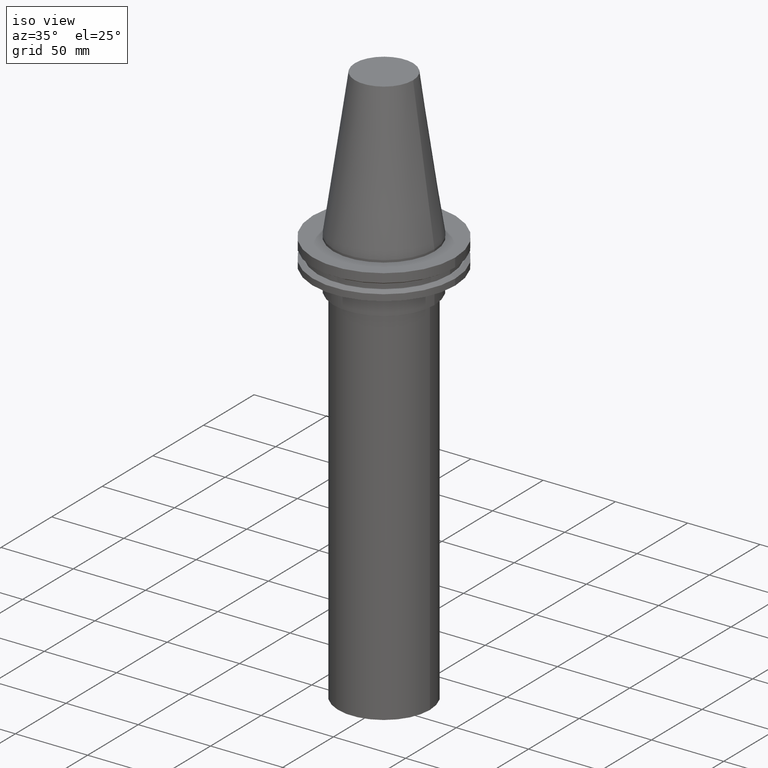
[diagram: clean part render]
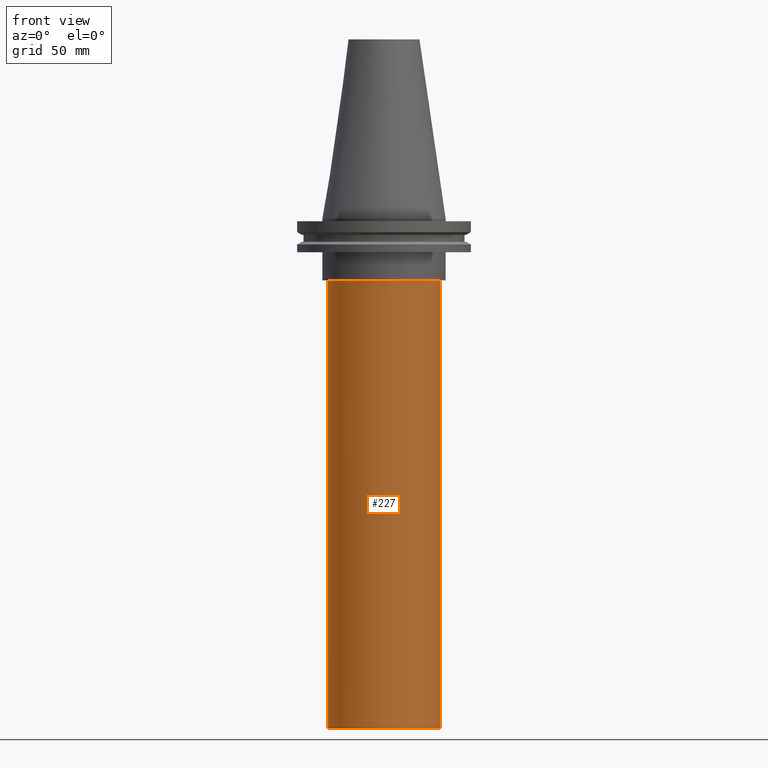
[diagram: tour spotlight — one face highlighted and labeled with its STEP entity id]
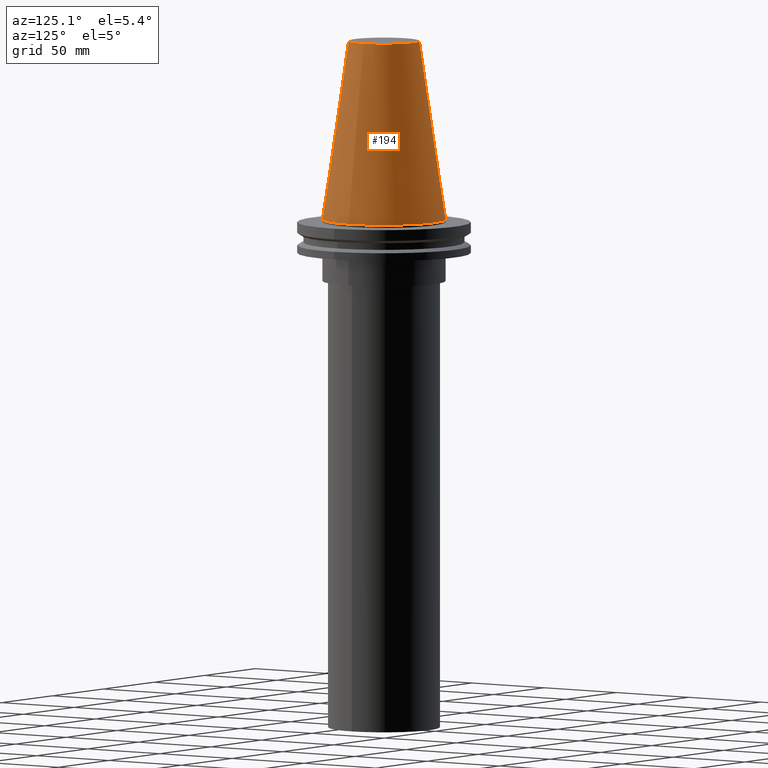
[diagram: tour spotlight — one face highlighted and labeled with its STEP entity id]
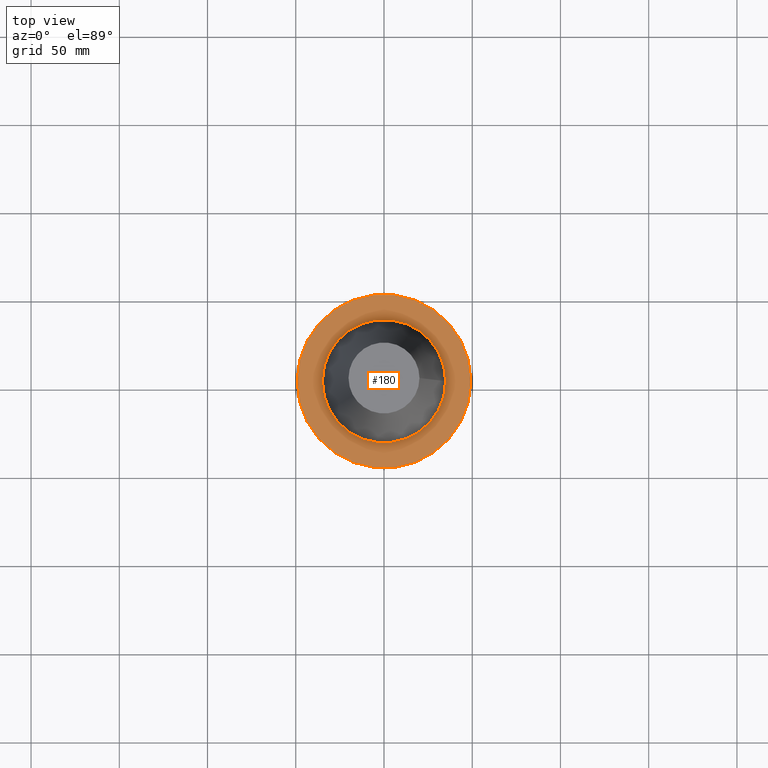
[diagram: tour spotlight — one face highlighted and labeled with its STEP entity id]
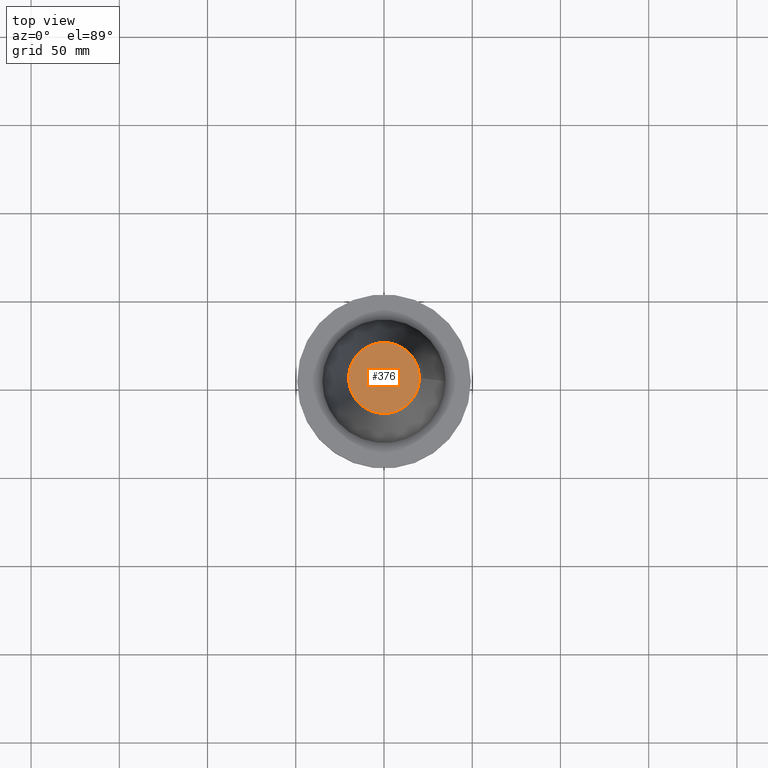
[diagram: tour spotlight — one face highlighted and labeled with its STEP entity id]
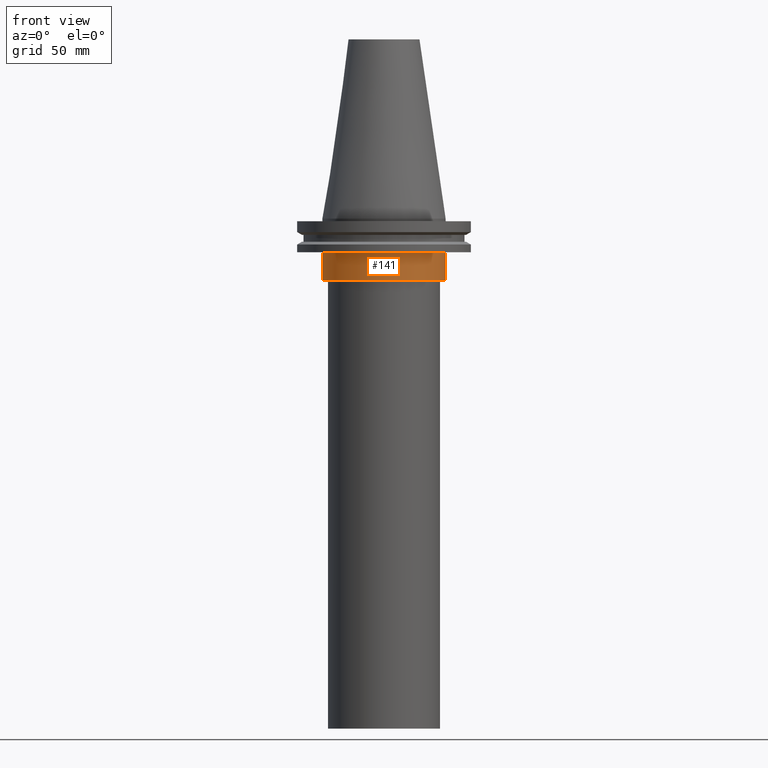
[diagram: tour spotlight — one face highlighted and labeled with its STEP entity id]
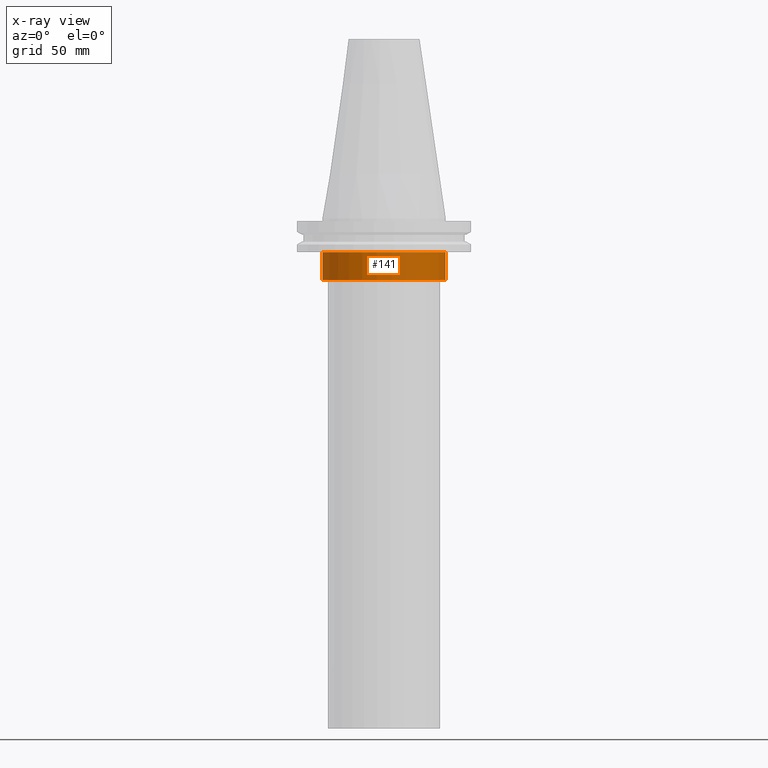
[diagram: x-ray of the same camera — body ghosted, this tour face saturated]
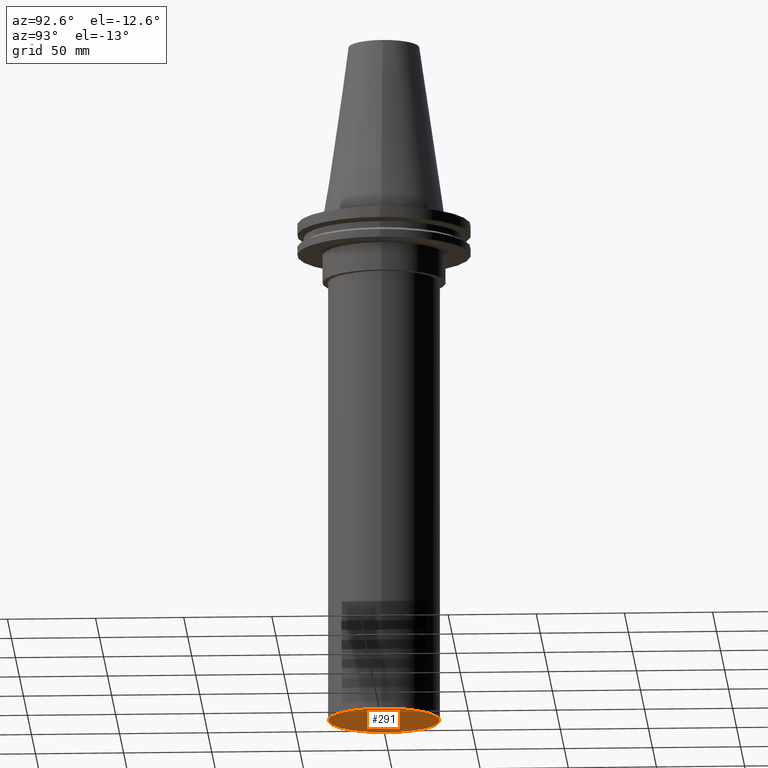
[diagram: tour spotlight — one face highlighted and labeled with its STEP entity id]
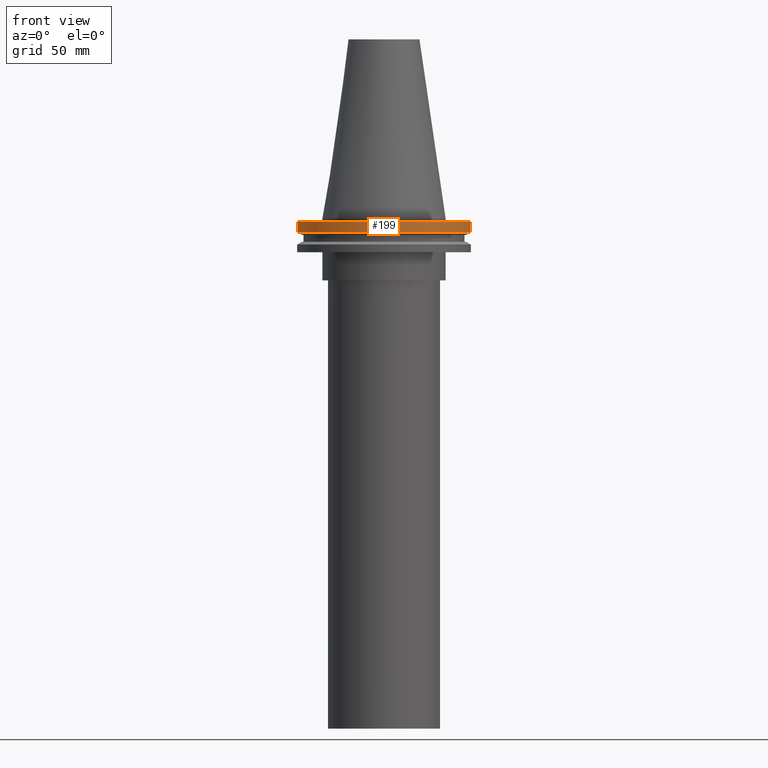
[diagram: tour spotlight — one face highlighted and labeled with its STEP entity id]
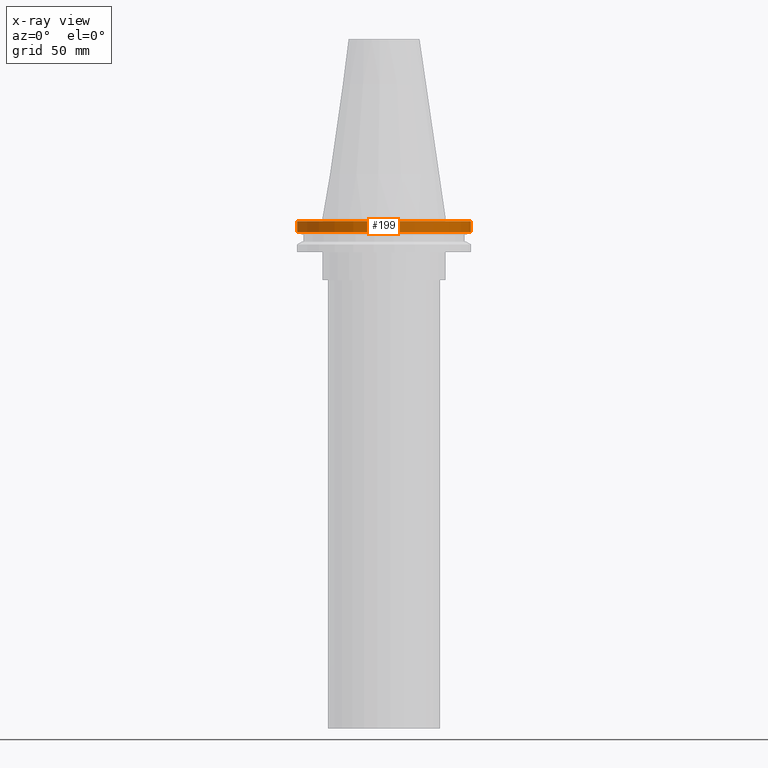
[diagram: x-ray of the same camera — body ghosted, this tour face saturated]
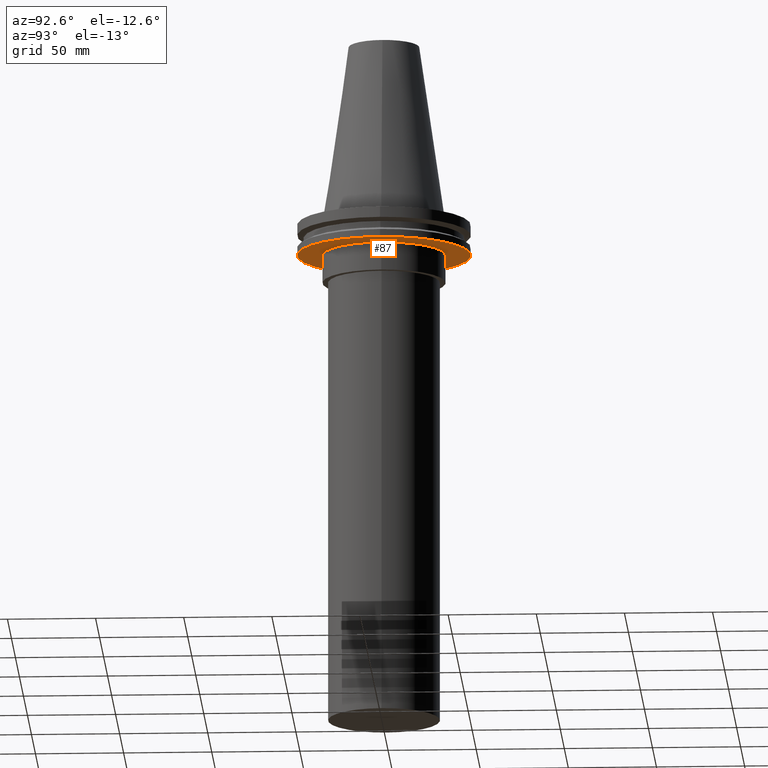
[diagram: tour spotlight — one face highlighted and labeled with its STEP entity id]
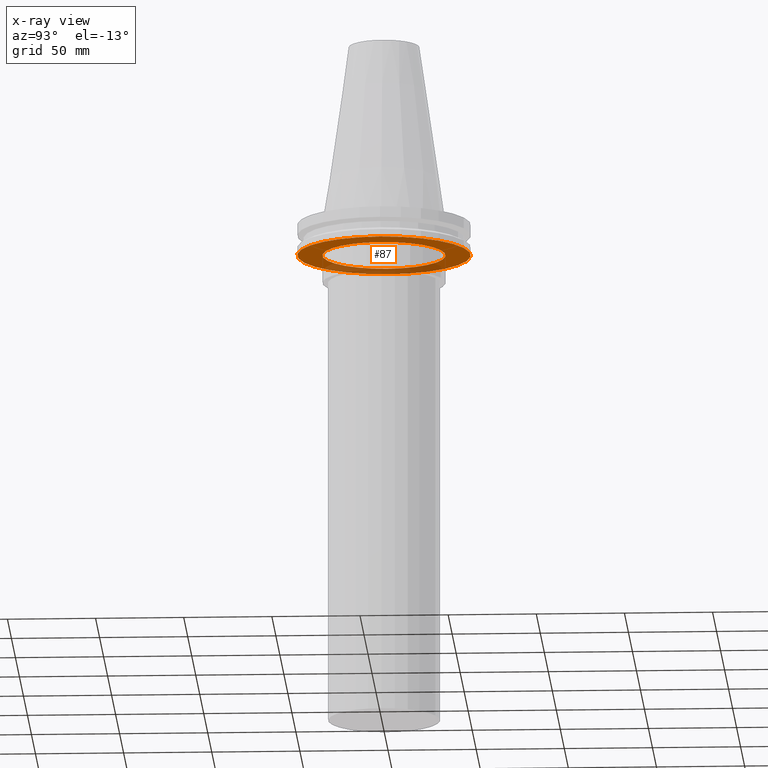
[diagram: x-ray of the same camera — body ghosted, this tour face saturated]
A machine part: a face-by-face anatomy tour. The part has 16 B-rep faces; the first image is the clean iso view, then the 8 largest visible faces are spotlighted one at a time (largest first), each with its STEP entity span.

Face 1 — front view, entity #227. In plain terms, the highlighted cylindrical surface (bore or boss wall) has radius 31.75 mm, axis along (-0, -0, 1).
Definition (entity closure, byte-faithful):
#6 = AXIS2_PLACEMENT_3D ( 'NONE', #23, #241, #365 ) ;
#23 = CARTESIAN_POINT ( 'NONE',  ( 0.000000000000000000, 0.000000000000000000, 0.000000000000000000 ) ) ;
#26 = EDGE_CURVE ( 'NONE', #239, #239, #212, .T. ) ;
#63 = CIRCLE ( 'NONE', #167, 31.75000000000000000 ) ;
#89 = FACE_OUTER_BOUND ( 'NONE', #360, .T. ) ;
#94 = CARTESIAN_POINT ( 'NONE',  ( 31.75000000000000000, 0.000000000000000000, -289.0000000000000568 ) ) ;
#123 = CARTESIAN_POINT ( 'NONE',  ( 0.000000000000000000, 0.000000000000000000, -35.00000000000000000 ) ) ;
#133 = EDGE_LOOP ( 'NONE', ( #278 ) ) ;
#142 = AXIS2_PLACEMENT_3D ( 'NONE', #162, #216, #338 ) ;
#147 = DIRECTION ( 'NONE',  ( 1.000000000000000000, 0.000000000000000000, 0.000000000000000000 ) ) ;
#162 = CARTESIAN_POINT ( 'NONE',  ( 0.000000000000000000, 0.000000000000000000, -289.0000000000000568 ) ) ;
#167 = AXIS2_PLACEMENT_3D ( 'NONE', #123, #234, #147 ) ;
#212 = CIRCLE ( 'NONE', #142, 31.75000000000000000 ) ;
#216 = DIRECTION ( 'NONE',  ( -0.000000000000000000, -0.000000000000000000, 1.000000000000000000 ) ) ;
#220 = ORIENTED_EDGE ( 'NONE', *, *, #347, .F. ) ;
#227 = ADVANCED_FACE ( 'NONE', ( #89, #273 ), #392, .T. ) ;
#234 = DIRECTION ( 'NONE',  ( -0.000000000000000000, -0.000000000000000000, 1.000000000000000000 ) ) ;
#239 = VERTEX_POINT ( 'NONE', #94 ) ;
#241 = DIRECTION ( 'NONE',  ( -0.000000000000000000, -0.000000000000000000, 1.000000000000000000 ) ) ;
#273 = FACE_OUTER_BOUND ( 'NONE', #133, .T. ) ;
#274 = VERTEX_POINT ( 'NONE', #310 ) ;
#278 = ORIENTED_EDGE ( 'NONE', *, *, #26, .T. ) ;
#310 = CARTESIAN_POINT ( 'NONE',  ( 31.75000000000000000, 0.000000000000000000, -35.00000000000000000 ) ) ;
#338 = DIRECTION ( 'NONE',  ( 1.000000000000000000, 0.000000000000000000, 0.000000000000000000 ) ) ;
#347 = EDGE_CURVE ( 'NONE', #274, #274, #63, .T. ) ;
#360 = EDGE_LOOP ( 'NONE', ( #220 ) ) ;
#365 = DIRECTION ( 'NONE',  ( 1.000000000000000000, 0.000000000000000000, 0.000000000000000000 ) ) ;
#392 = CYLINDRICAL_SURFACE ( 'NONE', #6, 31.75000000000000000 ) ;

Face 2 — auxiliary view, entity #194. In plain terms, the highlighted conical surface has half-angle 8.297 deg.
Definition (entity closure, byte-faithful):
#36 = VERTEX_POINT ( 'NONE', #215 ) ;
#44 = DIRECTION ( 'NONE',  ( 0.000000000000000000, 0.000000000000000000, -1.000000000000000000 ) ) ;
#47 = CIRCLE ( 'NONE', #390, 34.92499999999999005 ) ;
#72 = ORIENTED_EDGE ( 'NONE', *, *, #359, .T. ) ;
#93 = DIRECTION ( 'NONE',  ( -0.000000000000000000, -0.000000000000000000, 1.000000000000000000 ) ) ;
#95 = AXIS2_PLACEMENT_3D ( 'NONE', #322, #258, #259 ) ;
#98 = VERTEX_POINT ( 'NONE', #187 ) ;
#107 = FACE_BOUND ( 'NONE', #309, .T. ) ;
#125 = EDGE_CURVE ( 'NONE', #98, #98, #298, .T. ) ;
#154 = ORIENTED_EDGE ( 'NONE', *, *, #125, .F. ) ;
#160 = CONICAL_SURFACE ( 'NONE', #384, 34.92499999999999005, 0.1448138465474119452 ) ;
#166 = DIRECTION ( 'NONE',  ( -1.000000000000000000, 0.000000000000000000, 0.000000000000000000 ) ) ;
#187 = CARTESIAN_POINT ( 'NONE',  ( 20.10819343178871321, 0.000000000000000000, 101.5999999999999801 ) ) ;
#194 = ADVANCED_FACE ( 'NONE', ( #107, #223 ), #160, .T. ) ;
#215 = CARTESIAN_POINT ( 'NONE',  ( 34.92499999999999005, 0.000000000000000000, 0.000000000000000000 ) ) ;
#223 = FACE_OUTER_BOUND ( 'NONE', #341, .T. ) ;
#258 = DIRECTION ( 'NONE',  ( -0.000000000000000000, -0.000000000000000000, 1.000000000000000000 ) ) ;
#259 = DIRECTION ( 'NONE',  ( 1.000000000000000000, 0.000000000000000000, 0.000000000000000000 ) ) ;
#298 = CIRCLE ( 'NONE', #95, 20.10819343178871321 ) ;
#300 = DIRECTION ( 'NONE',  ( 1.000000000000000000, 0.000000000000000000, 0.000000000000000000 ) ) ;
#309 = EDGE_LOOP ( 'NONE', ( #154 ) ) ;
#320 = CARTESIAN_POINT ( 'NONE',  ( 0.000000000000000000, 0.000000000000000000, 0.000000000000000000 ) ) ;
#322 = CARTESIAN_POINT ( 'NONE',  ( 0.000000000000000000, 0.000000000000000000, 101.5999999999999801 ) ) ;
#341 = EDGE_LOOP ( 'NONE', ( #72 ) ) ;
#359 = EDGE_CURVE ( 'NONE', #36, #36, #47, .T. ) ;
#384 = AXIS2_PLACEMENT_3D ( 'NONE', #320, #44, #166 ) ;
#390 = AXIS2_PLACEMENT_3D ( 'NONE', #391, #93, #300 ) ;
#391 = CARTESIAN_POINT ( 'NONE',  ( 0.000000000000000000, 0.000000000000000000, 0.000000000000000000 ) ) ;

Face 3 — top view, entity #180. In plain terms, the highlighted planar face has unit normal (0, 0, -1).
Definition (entity closure, byte-faithful):
#5 = EDGE_LOOP ( 'NONE', ( #287 ) ) ;
#50 = DIRECTION ( 'NONE',  ( -1.000000000000000000, 0.000000000000000000, -0.000000000000000000 ) ) ;
#73 = EDGE_CURVE ( 'NONE', #245, #245, #297, .T. ) ;
#81 = DIRECTION ( 'NONE',  ( -0.000000000000000000, -0.000000000000000000, 1.000000000000000000 ) ) ;
#82 = CARTESIAN_POINT ( 'NONE',  ( 0.000000000000000000, 0.000000000000000000, -1.499999999999987566 ) ) ;
#84 = CIRCLE ( 'NONE', #193, 49.21499999999999631 ) ;
#105 = CARTESIAN_POINT ( 'NONE',  ( 49.21499999999999631, 0.000000000000000000, -1.499999999999987566 ) ) ;
#116 = DIRECTION ( 'NONE',  ( 0.000000000000000000, 0.000000000000000000, -1.000000000000000000 ) ) ;
#124 = AXIS2_PLACEMENT_3D ( 'NONE', #82, #380, #324 ) ;
#136 = CARTESIAN_POINT ( 'NONE',  ( 0.000000000000000000, 0.000000000000000000, -1.499999999999987566 ) ) ;
#169 = EDGE_CURVE ( 'NONE', #253, #253, #84, .T. ) ;
#180 = ADVANCED_FACE ( 'NONE', ( #200, #289 ), #197, .F. ) ;
#193 = AXIS2_PLACEMENT_3D ( 'NONE', #136, #81, #225 ) ;
#197 = PLANE ( 'NONE',  #261 ) ;
#200 = FACE_BOUND ( 'NONE', #221, .T. ) ;
#217 = CARTESIAN_POINT ( 'NONE',  ( 34.92499999999999005, 0.000000000000000000, -1.499999999999987566 ) ) ;
#221 = EDGE_LOOP ( 'NONE', ( #311 ) ) ;
#225 = DIRECTION ( 'NONE',  ( 1.000000000000000000, 0.000000000000000000, 0.000000000000000000 ) ) ;
#245 = VERTEX_POINT ( 'NONE', #217 ) ;
#253 = VERTEX_POINT ( 'NONE', #105 ) ;
#261 = AXIS2_PLACEMENT_3D ( 'NONE', #386, #116, #50 ) ;
#287 = ORIENTED_EDGE ( 'NONE', *, *, #169, .T. ) ;
#289 = FACE_OUTER_BOUND ( 'NONE', #5, .T. ) ;
#297 = CIRCLE ( 'NONE', #124, 34.92499999999999005 ) ;
#311 = ORIENTED_EDGE ( 'NONE', *, *, #73, .F. ) ;
#324 = DIRECTION ( 'NONE',  ( 1.000000000000000000, 0.000000000000000000, 0.000000000000000000 ) ) ;
#380 = DIRECTION ( 'NONE',  ( -0.000000000000000000, -0.000000000000000000, 1.000000000000000000 ) ) ;
#386 = CARTESIAN_POINT ( 'NONE',  ( 0.000000000000000000, 49.21499999999999631, -1.499999999999992895 ) ) ;

Face 4 — top view, entity #376. In plain terms, the highlighted planar face has unit normal (0, 0, -1).
Definition (entity closure, byte-faithful):
#25 = DIRECTION ( 'NONE',  ( 0.000000000000000000, 0.000000000000000000, -1.000000000000000000 ) ) ;
#65 = FACE_OUTER_BOUND ( 'NONE', #158, .T. ) ;
#95 = AXIS2_PLACEMENT_3D ( 'NONE', #322, #258, #259 ) ;
#98 = VERTEX_POINT ( 'NONE', #187 ) ;
#125 = EDGE_CURVE ( 'NONE', #98, #98, #298, .T. ) ;
#158 = EDGE_LOOP ( 'NONE', ( #251 ) ) ;
#187 = CARTESIAN_POINT ( 'NONE',  ( 20.10819343178871321, 0.000000000000000000, 101.5999999999999801 ) ) ;
#204 = AXIS2_PLACEMENT_3D ( 'NONE', #333, #25, #387 ) ;
#251 = ORIENTED_EDGE ( 'NONE', *, *, #125, .T. ) ;
#258 = DIRECTION ( 'NONE',  ( -0.000000000000000000, -0.000000000000000000, 1.000000000000000000 ) ) ;
#259 = DIRECTION ( 'NONE',  ( 1.000000000000000000, 0.000000000000000000, 0.000000000000000000 ) ) ;
#265 = PLANE ( 'NONE',  #204 ) ;
#298 = CIRCLE ( 'NONE', #95, 20.10819343178871321 ) ;
#322 = CARTESIAN_POINT ( 'NONE',  ( 0.000000000000000000, 0.000000000000000000, 101.5999999999999801 ) ) ;
#333 = CARTESIAN_POINT ( 'NONE',  ( 0.000000000000000000, 20.10819343178871321, 101.5999999999999943 ) ) ;
#376 = ADVANCED_FACE ( 'NONE', ( #65 ), #265, .F. ) ;
#387 = DIRECTION ( 'NONE',  ( -1.000000000000000000, 0.000000000000000000, -0.000000000000000000 ) ) ;

Face 5 — front view, entity #141. An x-ray twin of the same camera follows (body ghosted, this face saturated) — the face is partly hidden behind the body. In plain terms, the highlighted cylindrical surface (bore or boss wall) has radius 34.925 mm, axis along (-0, -0, 1).
Definition (entity closure, byte-faithful):
#1 = VERTEX_POINT ( 'NONE', #312 ) ;
#17 = DIRECTION ( 'NONE',  ( -0.000000000000000000, -0.000000000000000000, 1.000000000000000000 ) ) ;
#27 = EDGE_LOOP ( 'NONE', ( #130 ) ) ;
#40 = AXIS2_PLACEMENT_3D ( 'NONE', #233, #351, #170 ) ;
#46 = CARTESIAN_POINT ( 'NONE',  ( 0.000000000000000000, 0.000000000000000000, -35.00000000000000000 ) ) ;
#68 = EDGE_CURVE ( 'NONE', #279, #279, #364, .T. ) ;
#88 = FACE_OUTER_BOUND ( 'NONE', #27, .T. ) ;
#111 = FACE_OUTER_BOUND ( 'NONE', #174, .T. ) ;
#112 = AXIS2_PLACEMENT_3D ( 'NONE', #46, #17, #145 ) ;
#129 = EDGE_CURVE ( 'NONE', #1, #1, #350, .T. ) ;
#130 = ORIENTED_EDGE ( 'NONE', *, *, #129, .T. ) ;
#141 = ADVANCED_FACE ( 'NONE', ( #111, #88 ), #226, .T. ) ;
#145 = DIRECTION ( 'NONE',  ( 1.000000000000000000, 0.000000000000000000, 0.000000000000000000 ) ) ;
#153 = CARTESIAN_POINT ( 'NONE',  ( 34.92499999999999716, 0.000000000000000000, -19.04999999999999716 ) ) ;
#155 = ORIENTED_EDGE ( 'NONE', *, *, #68, .F. ) ;
#170 = DIRECTION ( 'NONE',  ( 1.000000000000000000, 0.000000000000000000, 0.000000000000000000 ) ) ;
#174 = EDGE_LOOP ( 'NONE', ( #155 ) ) ;
#192 = AXIS2_PLACEMENT_3D ( 'NONE', #383, #379, #293 ) ;
#226 = CYLINDRICAL_SURFACE ( 'NONE', #40, 34.92499999999999716 ) ;
#233 = CARTESIAN_POINT ( 'NONE',  ( 0.000000000000000000, 0.000000000000000000, 101.5999999999999943 ) ) ;
#279 = VERTEX_POINT ( 'NONE', #153 ) ;
#293 = DIRECTION ( 'NONE',  ( 1.000000000000000000, 0.000000000000000000, 0.000000000000000000 ) ) ;
#312 = CARTESIAN_POINT ( 'NONE',  ( 34.92499999999999716, 0.000000000000000000, -35.00000000000000000 ) ) ;
#350 = CIRCLE ( 'NONE', #112, 34.92499999999999716 ) ;
#351 = DIRECTION ( 'NONE',  ( -0.000000000000000000, -0.000000000000000000, 1.000000000000000000 ) ) ;
#364 = CIRCLE ( 'NONE', #192, 34.92499999999999716 ) ;
#379 = DIRECTION ( 'NONE',  ( -0.000000000000000000, -0.000000000000000000, 1.000000000000000000 ) ) ;
#383 = CARTESIAN_POINT ( 'NONE',  ( 0.000000000000000000, 0.000000000000000000, -19.04999999999999716 ) ) ;

Face 6 — auxiliary view, entity #291. In plain terms, the highlighted planar face has unit normal (0, -0, 1).
Definition (entity closure, byte-faithful):
#19 = CARTESIAN_POINT ( 'NONE',  ( 0.000000000000000000, 31.75000000000000000, -289.0000000000000568 ) ) ;
#26 = EDGE_CURVE ( 'NONE', #239, #239, #212, .T. ) ;
#92 = ORIENTED_EDGE ( 'NONE', *, *, #26, .F. ) ;
#94 = CARTESIAN_POINT ( 'NONE',  ( 31.75000000000000000, 0.000000000000000000, -289.0000000000000568 ) ) ;
#142 = AXIS2_PLACEMENT_3D ( 'NONE', #162, #216, #338 ) ;
#162 = CARTESIAN_POINT ( 'NONE',  ( 0.000000000000000000, 0.000000000000000000, -289.0000000000000568 ) ) ;
#212 = CIRCLE ( 'NONE', #142, 31.75000000000000000 ) ;
#216 = DIRECTION ( 'NONE',  ( -0.000000000000000000, -0.000000000000000000, 1.000000000000000000 ) ) ;
#236 = AXIS2_PLACEMENT_3D ( 'NONE', #19, #330, #301 ) ;
#239 = VERTEX_POINT ( 'NONE', #94 ) ;
#276 = EDGE_LOOP ( 'NONE', ( #92 ) ) ;
#291 = ADVANCED_FACE ( 'NONE', ( #394 ), #362, .F. ) ;
#301 = DIRECTION ( 'NONE',  ( 1.000000000000000000, 0.000000000000000000, 0.000000000000000000 ) ) ;
#330 = DIRECTION ( 'NONE',  ( 0.000000000000000000, -0.000000000000000000, 1.000000000000000000 ) ) ;
#338 = DIRECTION ( 'NONE',  ( 1.000000000000000000, 0.000000000000000000, 0.000000000000000000 ) ) ;
#362 = PLANE ( 'NONE',  #236 ) ;
#394 = FACE_OUTER_BOUND ( 'NONE', #276, .T. ) ;

Face 7 — front view, entity #199. An x-ray twin of the same camera follows (body ghosted, this face saturated) — the face is partly hidden behind the body. In plain terms, the highlighted cylindrical surface (bore or boss wall) has radius 49.215 mm, axis along (-0, -0, 1).
Definition (entity closure, byte-faithful):
#2 = DIRECTION ( 'NONE',  ( 1.000000000000000000, 0.000000000000000000, 0.000000000000000000 ) ) ;
#4 = EDGE_CURVE ( 'NONE', #118, #118, #334, .T. ) ;
#7 = AXIS2_PLACEMENT_3D ( 'NONE', #281, #375, #2 ) ;
#64 = FACE_OUTER_BOUND ( 'NONE', #99, .T. ) ;
#81 = DIRECTION ( 'NONE',  ( -0.000000000000000000, -0.000000000000000000, 1.000000000000000000 ) ) ;
#84 = CIRCLE ( 'NONE', #193, 49.21499999999999631 ) ;
#99 = EDGE_LOOP ( 'NONE', ( #163 ) ) ;
#105 = CARTESIAN_POINT ( 'NONE',  ( 49.21499999999999631, 0.000000000000000000, -1.499999999999987566 ) ) ;
#118 = VERTEX_POINT ( 'NONE', #235 ) ;
#121 = CARTESIAN_POINT ( 'NONE',  ( 0.000000000000000000, 0.000000000000000000, 101.5999999999999943 ) ) ;
#136 = CARTESIAN_POINT ( 'NONE',  ( 0.000000000000000000, 0.000000000000000000, -1.499999999999987566 ) ) ;
#144 = AXIS2_PLACEMENT_3D ( 'NONE', #121, #214, #207 ) ;
#163 = ORIENTED_EDGE ( 'NONE', *, *, #4, .T. ) ;
#169 = EDGE_CURVE ( 'NONE', #253, #253, #84, .T. ) ;
#177 = CYLINDRICAL_SURFACE ( 'NONE', #144, 49.21499999999999631 ) ;
#185 = ORIENTED_EDGE ( 'NONE', *, *, #169, .F. ) ;
#193 = AXIS2_PLACEMENT_3D ( 'NONE', #136, #81, #225 ) ;
#199 = ADVANCED_FACE ( 'NONE', ( #299, #64 ), #177, .T. ) ;
#207 = DIRECTION ( 'NONE',  ( 1.000000000000000000, 0.000000000000000000, 0.000000000000000000 ) ) ;
#214 = DIRECTION ( 'NONE',  ( -0.000000000000000000, -0.000000000000000000, 1.000000000000000000 ) ) ;
#225 = DIRECTION ( 'NONE',  ( 1.000000000000000000, 0.000000000000000000, 0.000000000000000000 ) ) ;
#235 = CARTESIAN_POINT ( 'NONE',  ( 49.21500000000000341, 0.000000000000000000, -7.602389855251287187 ) ) ;
#253 = VERTEX_POINT ( 'NONE', #105 ) ;
#281 = CARTESIAN_POINT ( 'NONE',  ( 0.000000000000000000, 0.000000000000000000, -7.602389855251287187 ) ) ;
#285 = EDGE_LOOP ( 'NONE', ( #185 ) ) ;
#299 = FACE_OUTER_BOUND ( 'NONE', #285, .T. ) ;
#334 = CIRCLE ( 'NONE', #7, 49.21500000000000341 ) ;
#375 = DIRECTION ( 'NONE',  ( -0.000000000000000000, -0.000000000000000000, 1.000000000000000000 ) ) ;

Face 8 — auxiliary view, entity #87. An x-ray twin of the same camera follows (body ghosted, this face saturated) — the face is partly hidden behind the body. In plain terms, the highlighted planar face has unit normal (0, -0, 1).
Definition (entity closure, byte-faithful):
#9 = VERTEX_POINT ( 'NONE', #345 ) ;
#13 = CARTESIAN_POINT ( 'NONE',  ( 0.000000000000000000, 49.21499999999998920, -19.04999999999999716 ) ) ;
#14 = FACE_BOUND ( 'NONE', #67, .T. ) ;
#22 = EDGE_LOOP ( 'NONE', ( #313 ) ) ;
#52 = DIRECTION ( 'NONE',  ( 1.000000000000000000, 0.000000000000000000, 0.000000000000000000 ) ) ;
#54 = EDGE_CURVE ( 'NONE', #9, #9, #159, .T. ) ;
#67 = EDGE_LOOP ( 'NONE', ( #178 ) ) ;
#68 = EDGE_CURVE ( 'NONE', #279, #279, #364, .T. ) ;
#87 = ADVANCED_FACE ( 'NONE', ( #264, #14 ), #295, .F. ) ;
#153 = CARTESIAN_POINT ( 'NONE',  ( 34.92499999999999716, 0.000000000000000000, -19.04999999999999716 ) ) ;
#159 = CIRCLE ( 'NONE', #228, 49.21499999999998920 ) ;
#178 = ORIENTED_EDGE ( 'NONE', *, *, #68, .T. ) ;
#192 = AXIS2_PLACEMENT_3D ( 'NONE', #383, #379, #293 ) ;
#228 = AXIS2_PLACEMENT_3D ( 'NONE', #368, #231, #52 ) ;
#231 = DIRECTION ( 'NONE',  ( -0.000000000000000000, -0.000000000000000000, 1.000000000000000000 ) ) ;
#264 = FACE_OUTER_BOUND ( 'NONE', #22, .T. ) ;
#279 = VERTEX_POINT ( 'NONE', #153 ) ;
#293 = DIRECTION ( 'NONE',  ( 1.000000000000000000, 0.000000000000000000, 0.000000000000000000 ) ) ;
#295 = PLANE ( 'NONE',  #317 ) ;
#313 = ORIENTED_EDGE ( 'NONE', *, *, #54, .F. ) ;
#317 = AXIS2_PLACEMENT_3D ( 'NONE', #13, #348, #355 ) ;
#345 = CARTESIAN_POINT ( 'NONE',  ( 49.21499999999998920, 0.000000000000000000, -19.04999999999999716 ) ) ;
#348 = DIRECTION ( 'NONE',  ( 0.000000000000000000, -0.000000000000000000, 1.000000000000000000 ) ) ;
#355 = DIRECTION ( 'NONE',  ( 1.000000000000000000, 0.000000000000000000, 0.000000000000000000 ) ) ;
#364 = CIRCLE ( 'NONE', #192, 34.92499999999999716 ) ;
#368 = CARTESIAN_POINT ( 'NONE',  ( 0.000000000000000000, 0.000000000000000000, -19.04999999999999716 ) ) ;
#379 = DIRECTION ( 'NONE',  ( -0.000000000000000000, -0.000000000000000000, 1.000000000000000000 ) ) ;
#383 = CARTESIAN_POINT ( 'NONE',  ( 0.000000000000000000, 0.000000000000000000, -19.04999999999999716 ) ) ;